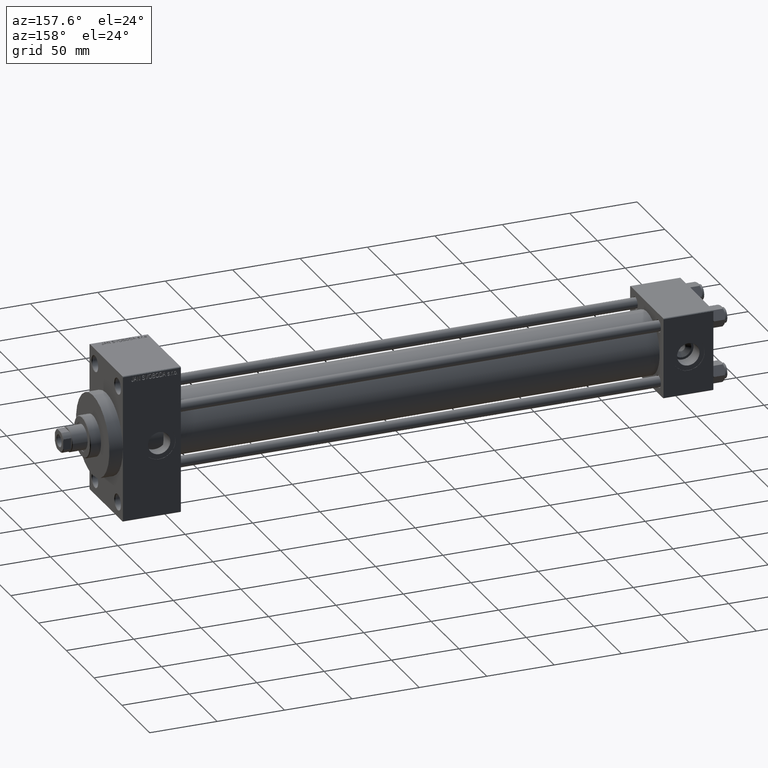
[diagram: clean part render]
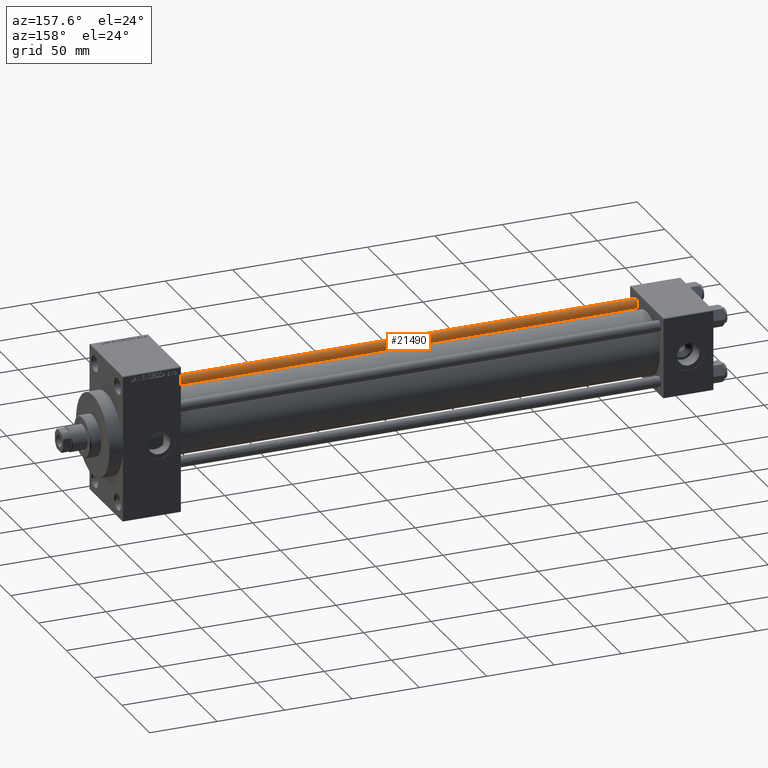
[diagram: same view with one face highlighted and labeled with its STEP entity id]
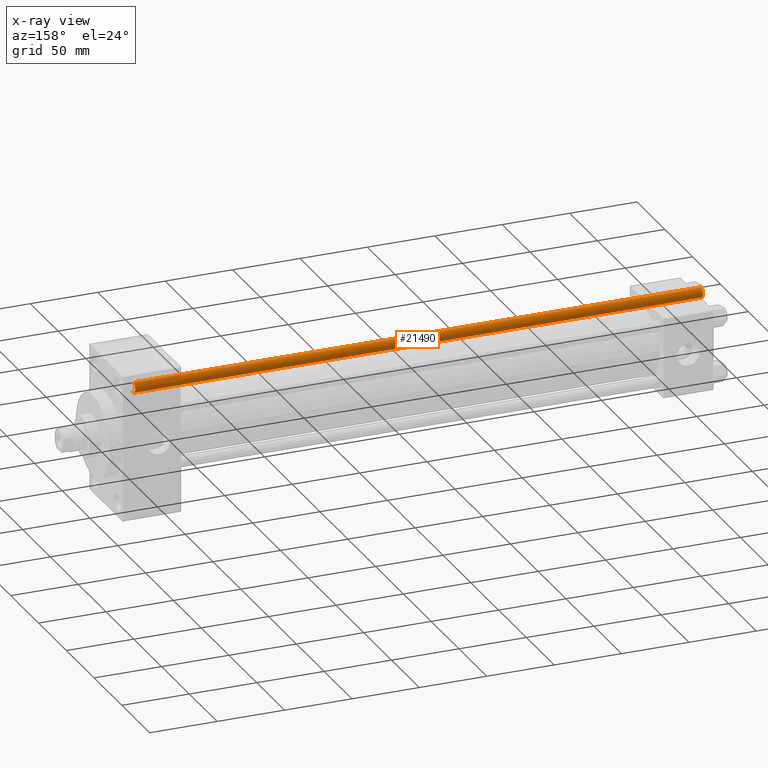
[diagram: x-ray of the same camera — body ghosted, the highlighted face saturated]
A machine part, auxiliary view. The second image highlights one B-rep face of the part: STEP entity #21490.
The next image is the same camera in x-ray: the body ghosted, the highlighted face saturated — about 3% of this face is hidden behind the body in this view.
In plain terms, the highlighted cylindrical surface (edge-blend (fillet) strip) has radius 4 mm, axis along (1, 0, 0).
Its self-contained STEP definition (entity closure, byte-faithful):
#602 = CARTESIAN_POINT ( 'NONE',  ( 0.000000000000000000, 0.000000000000000000, 0.5000000000001114664 ) ) ;
#2655 = VERTEX_POINT ( 'NONE', #9222 ) ;
#5644 = LINE ( 'NONE', #47513, #10196 ) ;
#5780 = EDGE_CURVE ( 'NONE', #8030, #46879, #5644, .T. ) ;
#7129 = VERTEX_POINT ( 'NONE', #39440 ) ;
#7845 = DIRECTION ( 'NONE',  ( 1.000000000000000000, 0.000000000000000000, 0.000000000000000000 ) ) ;
#8030 = VERTEX_POINT ( 'NONE', #14080 ) ;
#8931 = DIRECTION ( 'NONE',  ( 1.000000000000000000, 0.000000000000000000, 0.000000000000000000 ) ) ;
#9222 = CARTESIAN_POINT ( 'NONE',  ( -4.000000000000000000, 0.000000000000000000, 0.5000000000001114664 ) ) ;
#10129 = VECTOR ( 'NONE', #10889, 1000.000000000000000 ) ;
#10196 = VECTOR ( 'NONE', #27374, 1000.000000000000000 ) ;
#10844 = FACE_OUTER_BOUND ( 'NONE', #19030, .T. ) ;
#10889 = DIRECTION ( 'NONE',  ( -0.000000000000000000, -0.000000000000000000, -1.000000000000000000 ) ) ;
#11408 = AXIS2_PLACEMENT_3D ( 'NONE', #15568, #41985, #34256 ) ;
#11842 = DIRECTION ( 'NONE',  ( -0.000000000000000000, -0.000000000000000000, 1.000000000000000000 ) ) ;
#12228 = AXIS2_PLACEMENT_3D ( 'NONE', #602, #11842, #7845 ) ;
#13787 = ORIENTED_EDGE ( 'NONE', *, *, #5780, .F. ) ;
#13807 = CIRCLE ( 'NONE', #12228, 4.000000000000000000 ) ;
#14080 = CARTESIAN_POINT ( 'NONE',  ( 4.000000000000000000, 4.898587196589412829E-16, 421.4999999999999432 ) ) ;
#15568 = CARTESIAN_POINT ( 'NONE',  ( 0.000000000000000000, 0.000000000000000000, 422.0000000000000000 ) ) ;
#16312 = CIRCLE ( 'NONE', #29844, 4.000000000000000000 ) ;
#17441 = ORIENTED_EDGE ( 'NONE', *, *, #35107, .T. ) ;
#19030 = EDGE_LOOP ( 'NONE', ( #13787, #35402, #37914, #17441 ) ) ;
#20624 = DIRECTION ( 'NONE',  ( 0.000000000000000000, 0.000000000000000000, -1.000000000000000000 ) ) ;
#21490 = ADVANCED_FACE ( 'NONE', ( #10844 ), #26791, .T. ) ;
#26791 = CYLINDRICAL_SURFACE ( 'NONE', #11408, 4.000000000000000000 ) ;
#27374 = DIRECTION ( 'NONE',  ( -0.000000000000000000, -0.000000000000000000, -1.000000000000000000 ) ) ;
#29816 = LINE ( 'NONE', #45024, #10129 ) ;
#29844 = AXIS2_PLACEMENT_3D ( 'NONE', #43812, #20624, #8931 ) ;
#34256 = DIRECTION ( 'NONE',  ( -1.000000000000000000, 0.000000000000000000, 0.000000000000000000 ) ) ;
#35107 = EDGE_CURVE ( 'NONE', #2655, #46879, #13807, .T. ) ;
#35402 = ORIENTED_EDGE ( 'NONE', *, *, #38027, .T. ) ;
#37158 = CARTESIAN_POINT ( 'NONE',  ( 4.000000000000000000, 4.898587196589412829E-16, 0.5000000000001114664 ) ) ;
#37914 = ORIENTED_EDGE ( 'NONE', *, *, #47633, .T. ) ;
#38027 = EDGE_CURVE ( 'NONE', #8030, #7129, #16312, .T. ) ;
#39440 = CARTESIAN_POINT ( 'NONE',  ( -4.000000000000000000, 0.000000000000000000, 421.4999999999999432 ) ) ;
#41985 = DIRECTION ( 'NONE',  ( -0.000000000000000000, -0.000000000000000000, -1.000000000000000000 ) ) ;
#43812 = CARTESIAN_POINT ( 'NONE',  ( 0.000000000000000000, 0.000000000000000000, 421.4999999999999432 ) ) ;
#45024 = CARTESIAN_POINT ( 'NONE',  ( -4.000000000000000000, 0.000000000000000000, 422.0000000000000000 ) ) ;
#46879 = VERTEX_POINT ( 'NONE', #37158 ) ;
#47513 = CARTESIAN_POINT ( 'NONE',  ( 4.000000000000000000, 4.898587196589412829E-16, 422.0000000000000000 ) ) ;
#47633 = EDGE_CURVE ( 'NONE', #7129, #2655, #29816, .T. ) ;